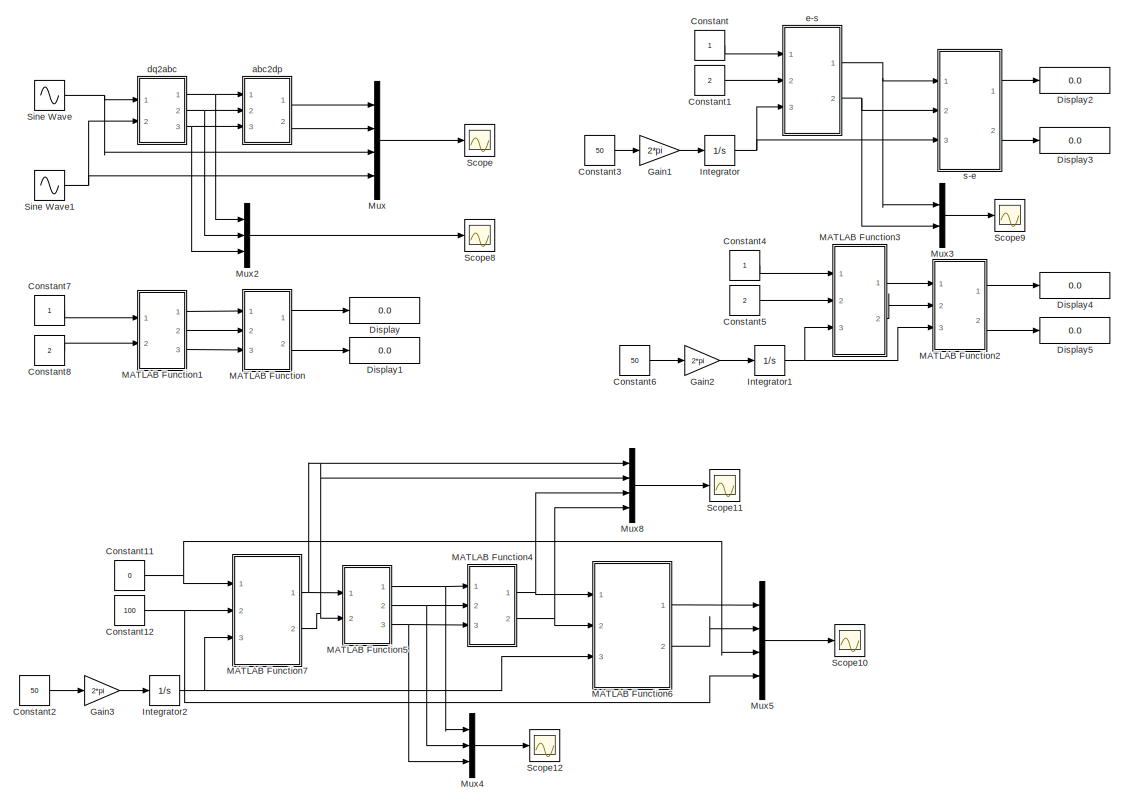
[diagram: root canvas - part 1/3, top left region]
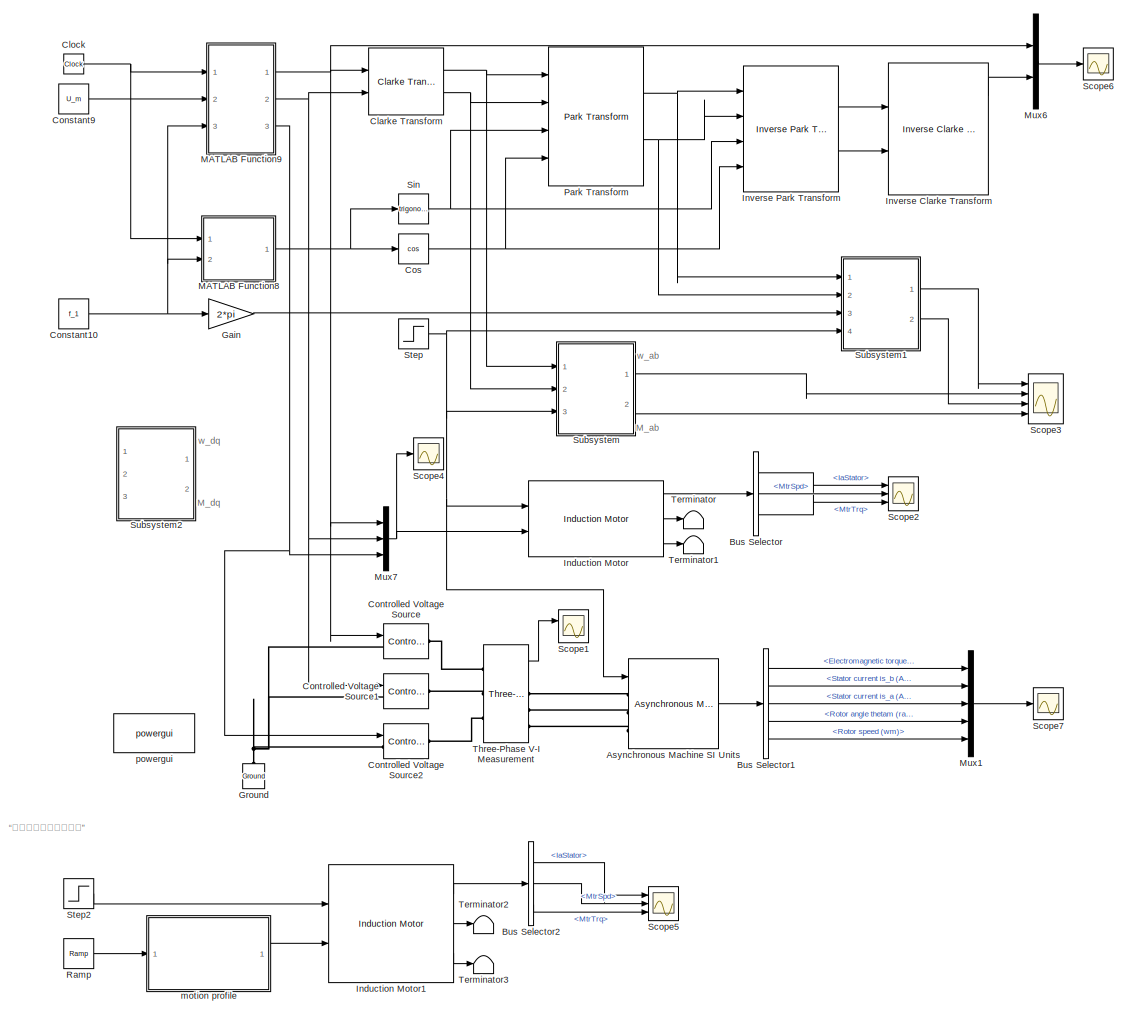
[diagram: root canvas - part 2/3, middle left region]
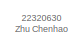
[diagram: root canvas - part 3/3, bottom right region]
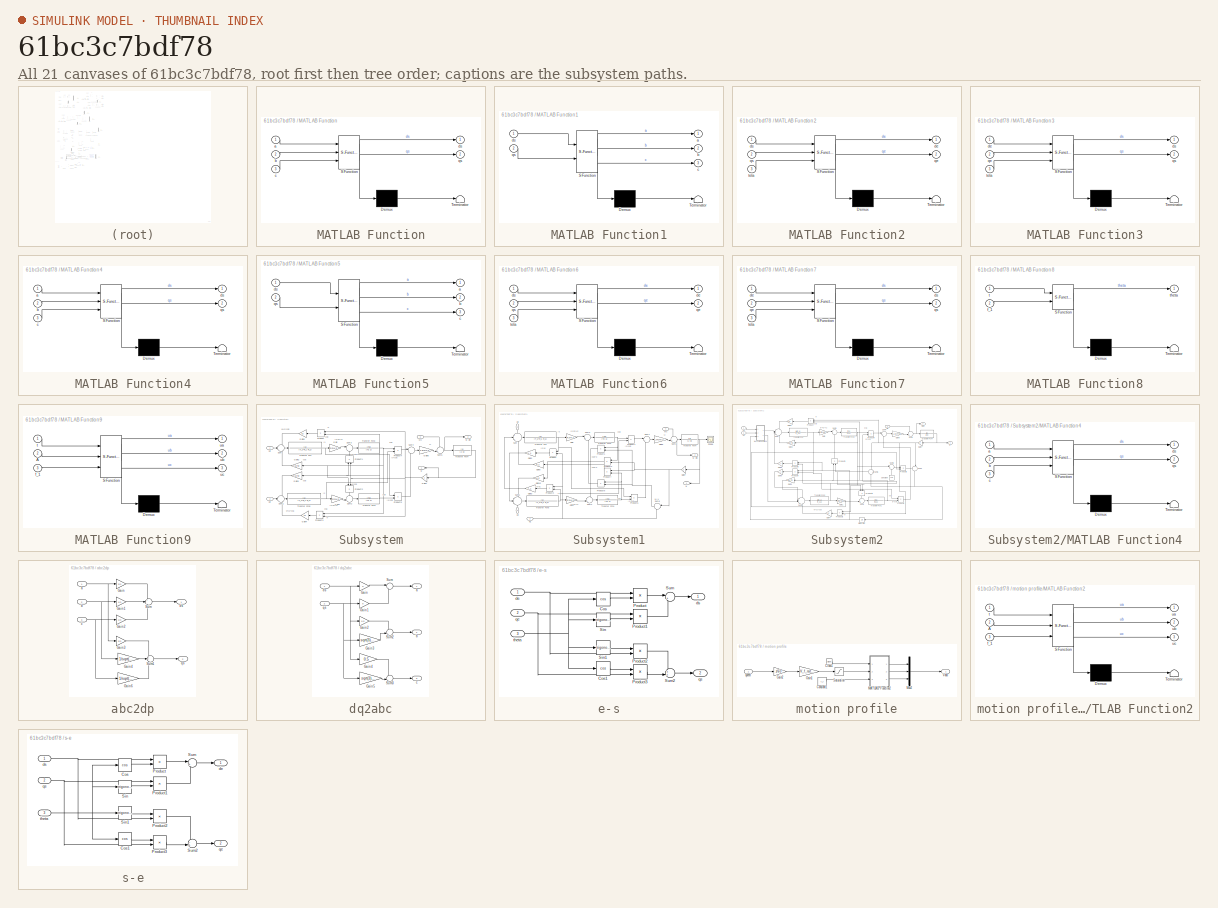
[diagram: thumbnail index - all 21 canvases of the model, root first then tree order]
MODEL slx_61bc3c7bdf78
KIND model
CONFIG AbsTol = auto
CONFIG EnableMultiTasking = off
CONFIG FixedStep = auto
CONFIG MaxStep = 1e-4
CONFIG MinStep = auto
CONFIG RelTol = 1e-3
CONFIG SampleTimeConstraint = Unconstrained
CONFIG SolverName = ode23t
CONFIG StartTime = 0.0
CONFIG StopTime = Tmdl
BLOCK [Reference] Asynchronous Machine SI Units  REF=spsAsynchronousMachineSIUnitsLib/Asynchronous Machine
SI Units
  Ports = [1, 1, 0, 0, 0, 3]
  SourceBlock = spsAsynchronousMachineSIUnitsLib/Asynchronous Machine\nSI Units
  SourceType = Asynchronous Machine
BLOCK [BusSelector] Bus Selector
  OutputSignals = IaStator,MtrSpd,MtrTrq
  Ports = [1, 3]
BLOCK [BusSelector] Bus Selector1
  OutputSignals = Mechanical.Electromagnetic torque Te (N*m),Stator measurements.Stator current is_b (A),Stator measurements.Stator current is_a (A),Mechanical.Rotor angle thetam (rad),Mechanical.Rotor speed (wm)
  Ports = [1, 5]
BLOCK [BusSelector] Bus Selector2
  OutputSignals = IaStator,MtrSpd,MtrTrq
  Ports = [1, 3]
BLOCK [Reference] Clarke Transform  REF=mcbcontrolslib/Clarke Transform
  Ports = [2, 2]
  SourceBlock = mcbcontrolslib/Clarke Transform
  SourceType = Clarke Transform
BLOCK [Clock] Clock
  Decimation = 1
BLOCK [Constant] Constant
BLOCK [Constant] Constant1
  Value = 2
BLOCK [Constant] Constant10
  Value = f_1
BLOCK [Constant] Constant11
  Value = 0
BLOCK [Constant] Constant12
  Value = 100
BLOCK [Constant] Constant2
  Value = 50
BLOCK [Constant] Constant3
  Value = 50
BLOCK [Constant] Constant4
BLOCK [Constant] Constant5
  Value = 2
BLOCK [Constant] Constant6
  Value = 50
BLOCK [Constant] Constant7
BLOCK [Constant] Constant8
  Value = 2
BLOCK [Constant] Constant9
  Value = U_m
BLOCK [Reference] Controlled Voltage Source  REF=spsControlledVoltageSourceLib/Controlled Voltage Source
  NameLocation = left
  Ports = [1, 0, 0, 0, 0, 1, 1]
  SourceBlock = spsControlledVoltageSourceLib/Controlled Voltage Source
  SourceType = Controlled Voltage Source
BLOCK [Reference] Controlled Voltage Source1  REF=spsControlledVoltageSourceLib/Controlled Voltage Source
  NameLocation = left
  Ports = [1, 0, 0, 0, 0, 1, 1]
  SourceBlock = spsControlledVoltageSourceLib/Controlled Voltage Source
  SourceType = Controlled Voltage Source
BLOCK [Reference] Controlled Voltage Source2  REF=spsControlledVoltageSourceLib/Controlled Voltage Source
  NameLocation = left
  Ports = [1, 0, 0, 0, 0, 1, 1]
  SourceBlock = spsControlledVoltageSourceLib/Controlled Voltage Source
  SourceType = Controlled Voltage Source
BLOCK [Trigonometry] Cos
  Operator = cos
  Ports = [1, 1]
BLOCK [Display] Display
  Decimation = 1
  Ports = [1]
BLOCK [Display] Display1
  Decimation = 1
  Ports = [1]
BLOCK [Display] Display2
  Decimation = 1
  Ports = [1]
BLOCK [Display] Display3
  Decimation = 1
  Ports = [1]
BLOCK [Display] Display4
  Decimation = 1
  Ports = [1]
BLOCK [Display] Display5
  Decimation = 1
  Ports = [1]
BLOCK [Gain] Gain
  Gain = 2*pi
BLOCK [Gain] Gain1
  Gain = 2*pi
BLOCK [Gain] Gain2
  Gain = 2*pi
BLOCK [Gain] Gain3
  Gain = 2*pi
BLOCK [Reference] Ground  REF=spsGroundLib/Ground
  NameLocation = right
  Ports = [0, 0, 0, 0, 0, 1]
  SourceBlock = spsGroundLib/Ground
  SourceType = Ground
BLOCK [Reference] Induction Motor  REF=autolibim/Induction Motor
  Ports = [2, 3]
  SourceBlock = autolibim/Induction Motor
  SourceType = Induction Motor
BLOCK [Reference] Induction Motor1  REF=autolibim/Induction Motor
  Ports = [2, 3]
  SourceBlock = autolibim/Induction Motor
  SourceType = Induction Motor
BLOCK [Integrator] Integrator
  Ports = [1, 1]
BLOCK [Integrator] Integrator1
  Ports = [1, 1]
BLOCK [Integrator] Integrator2
  Ports = [1, 1]
BLOCK [Reference] Inverse Clarke Transform  REF=mcbcontrolslib/Inverse Clarke Transform
  Ports = [2, 3]
  SourceBlock = mcbcontrolslib/Inverse Clarke Transform
  SourceType = Inverse Clarke Transform
BLOCK [Reference] Inverse Park Transform  REF=mcbcontrolslib/Inverse Park Transform
  Ports = [4, 2]
  SourceBlock = mcbcontrolslib/Inverse Park Transform
  SourceType = Inverse Park Transform
BLOCK [SubSystem] MATLAB Function
  ErrorFcn = Stateflow.Translate.translate
  PermitHierarchicalResolution = ExplicitOnly
  Ports = [3, 2]
  SFBlockType = MATLAB Function
  TreatAsAtomicUnit = on
BLOCK [Demux] MATLAB Function/ Demux 
  Outputs = 1
  Ports = [1, 1]
BLOCK [S-Function] MATLAB Function/ SFunction 
  EnableBusSupport = on
  FunctionName = sf_sfun
  PortCounts = [3 3]
  Ports = [3, 3]
  SFcnIsStateOwnerBlock = off
  SFunctionDeploymentMode = off
  Tag = Stateflow S-Function 1
BLOCK [Terminator] MATLAB Function/ Terminator 
BLOCK [Inport] MATLAB Function/a
BLOCK [Inport] MATLAB Function/b
  Port = 2
BLOCK [Inport] MATLAB Function/c
  Port = 3
BLOCK [Outport] MATLAB Function/ds
BLOCK [Outport] MATLAB Function/qs
  Port = 2
BLOCK [SubSystem] MATLAB Function1
  ErrorFcn = Stateflow.Translate.translate
  PermitHierarchicalResolution = ExplicitOnly
  Ports = [2, 3]
  SFBlockType = MATLAB Function
  TreatAsAtomicUnit = on
BLOCK [Demux] MATLAB Function1/ Demux 
  Outputs = 1
  Ports = [1, 1]
BLOCK [S-Function] MATLAB Function1/ SFunction 
  EnableBusSupport = on
  FunctionName = sf_sfun
  PortCounts = [2 4]
  Ports = [2, 4]
  SFcnIsStateOwnerBlock = off
  SFunctionDeploymentMode = off
  Tag = Stateflow S-Function 3
BLOCK [Terminator] MATLAB Function1/ Terminator 
BLOCK [Outport] MATLAB Function1/a
BLOCK [Outport] MATLAB Function1/b
  Port = 2
BLOCK [Outport] MATLAB Function1/c
  Port = 3
BLOCK [Inport] MATLAB Function1/ds
BLOCK [Inport] MATLAB Function1/qs
  Port = 2
BLOCK [SubSystem] MATLAB Function2
  ErrorFcn = Stateflow.Translate.translate
  PermitHierarchicalResolution = ExplicitOnly
  Ports = [3, 2]
  SFBlockType = MATLAB Function
  TreatAsAtomicUnit = on
BLOCK [Demux] MATLAB Function2/ Demux 
  Outputs = 1
  Ports = [1, 1]
BLOCK [S-Function] MATLAB Function2/ SFunction 
  EnableBusSupport = on
  FunctionName = sf_sfun
  PortCounts = [3 3]
  Ports = [3, 3]
  SFcnIsStateOwnerBlock = off
  SFunctionDeploymentMode = off
  Tag = Stateflow S-Function 4
BLOCK [Terminator] MATLAB Function2/ Terminator 
BLOCK [Outport] MATLAB Function2/de
BLOCK [Inport] MATLAB Function2/ds
BLOCK [Outport] MATLAB Function2/qe
  Port = 2
BLOCK [Inport] MATLAB Function2/qs
  Port = 2
BLOCK [Inport] MATLAB Function2/teta
  Port = 3
BLOCK [SubSystem] MATLAB Function3
  ErrorFcn = Stateflow.Translate.translate
  PermitHierarchicalResolution = ExplicitOnly
  Ports = [3, 2]
  SFBlockType = MATLAB Function
  TreatAsAtomicUnit = on
BLOCK [Demux] MATLAB Function3/ Demux 
  Outputs = 1
  Ports = [1, 1]
BLOCK [S-Function] MATLAB Function3/ SFunction 
  EnableBusSupport = on
  FunctionName = sf_sfun
  PortCounts = [3 3]
  Ports = [3, 3]
  SFcnIsStateOwnerBlock = off
  SFunctionDeploymentMode = off
  Tag = Stateflow S-Function 6
BLOCK [Terminator] MATLAB Function3/ Terminator 
BLOCK [Inport] MATLAB Function3/de
BLOCK [Outport] MATLAB Function3/ds
BLOCK [Inport] MATLAB Function3/qe
  Port = 2
BLOCK [Outport] MATLAB Function3/qs
  Port = 2
BLOCK [Inport] MATLAB Function3/teta
  Port = 3
BLOCK [SubSystem] MATLAB Function4
  ErrorFcn = Stateflow.Translate.translate
  PermitHierarchicalResolution = ExplicitOnly
  Ports = [3, 2]
  SFBlockType = MATLAB Function
  TreatAsAtomicUnit = on
BLOCK [Demux] MATLAB Function4/ Demux 
  Outputs = 1
  Ports = [1, 1]
BLOCK [S-Function] MATLAB Function4/ SFunction 
  EnableBusSupport = on
  FunctionName = sf_sfun
  PortCounts = [3 3]
  Ports = [3, 3]
  SFcnIsStateOwnerBlock = off
  SFunctionDeploymentMode = off
  Tag = Stateflow S-Function 7
BLOCK [Terminator] MATLAB Function4/ Terminator 
BLOCK [Inport] MATLAB Function4/a
BLOCK [Inport] MATLAB Function4/b
  Port = 2
BLOCK [Inport] MATLAB Function4/c
  Port = 3
BLOCK [Outport] MATLAB Function4/ds
BLOCK [Outport] MATLAB Function4/qs
  Port = 2
BLOCK [SubSystem] MATLAB Function5
  ErrorFcn = Stateflow.Translate.translate
  PermitHierarchicalResolution = ExplicitOnly
  Ports = [2, 3]
  SFBlockType = MATLAB Function
  TreatAsAtomicUnit = on
BLOCK [Demux] MATLAB Function5/ Demux 
  Outputs = 1
  Ports = [1, 1]
BLOCK [S-Function] MATLAB Function5/ SFunction 
  EnableBusSupport = on
  FunctionName = sf_sfun
  PortCounts = [2 4]
  Ports = [2, 4]
  SFcnIsStateOwnerBlock = off
  SFunctionDeploymentMode = off
  Tag = Stateflow S-Function 8
BLOCK [Terminator] MATLAB Function5/ Terminator 
BLOCK [Outport] MATLAB Function5/a
BLOCK [Outport] MATLAB Function5/b
  Port = 2
BLOCK [Outport] MATLAB Function5/c
  Port = 3
BLOCK [Inport] MATLAB Function5/ds
BLOCK [Inport] MATLAB Function5/qs
  Port = 2
BLOCK [SubSystem] MATLAB Function6
  ErrorFcn = Stateflow.Translate.translate
  PermitHierarchicalResolution = ExplicitOnly
  Ports = [3, 2]
  SFBlockType = MATLAB Function
  TreatAsAtomicUnit = on
BLOCK [Demux] MATLAB Function6/ Demux 
  Outputs = 1
  Ports = [1, 1]
BLOCK [S-Function] MATLAB Function6/ SFunction 
  EnableBusSupport = on
  FunctionName = sf_sfun
  PortCounts = [3 3]
  Ports = [3, 3]
  SFcnIsStateOwnerBlock = off
  SFunctionDeploymentMode = off
  Tag = Stateflow S-Function 11
BLOCK [Terminator] MATLAB Function6/ Terminator 
BLOCK [Outport] MATLAB Function6/de
BLOCK [Inport] MATLAB Function6/ds
BLOCK [Outport] MATLAB Function6/qe
  Port = 2
BLOCK [Inport] MATLAB Function6/qs
  Port = 2
BLOCK [Inport] MATLAB Function6/teta
  Port = 3
BLOCK [SubSystem] MATLAB Function7
  ErrorFcn = Stateflow.Translate.translate
  PermitHierarchicalResolution = ExplicitOnly
  Ports = [3, 2]
  SFBlockType = MATLAB Function
  TreatAsAtomicUnit = on
BLOCK [Demux] MATLAB Function7/ Demux 
  Outputs = 1
  Ports = [1, 1]
BLOCK [S-Function] MATLAB Function7/ SFunction 
  EnableBusSupport = on
  FunctionName = sf_sfun
  PortCounts = [3 3]
  Ports = [3, 3]
  SFcnIsStateOwnerBlock = off
  SFunctionDeploymentMode = off
  Tag = Stateflow S-Function 12
BLOCK [Terminator] MATLAB Function7/ Terminator 
BLOCK [Inport] MATLAB Function7/de
BLOCK [Outport] MATLAB Function7/ds
BLOCK [Inport] MATLAB Function7/qe
  Port = 2
BLOCK [Outport] MATLAB Function7/qs
  Port = 2
BLOCK [Inport] MATLAB Function7/teta
  Port = 3
BLOCK [SubSystem] MATLAB Function8
  ErrorFcn = Stateflow.Translate.translate
  PermitHierarchicalResolution = ExplicitOnly
  Ports = [2, 1]
  SFBlockType = MATLAB Function
  TreatAsAtomicUnit = on
BLOCK [Demux] MATLAB Function8/ Demux 
  Outputs = 1
  Ports = [1, 1]
BLOCK [S-Function] MATLAB Function8/ SFunction 
  EnableBusSupport = on
  FunctionName = sf_sfun
  PortCounts = [2 2]
  Ports = [2, 2]
  SFcnIsStateOwnerBlock = off
  SFunctionDeploymentMode = off
  Tag = Stateflow S-Function 9
BLOCK [Terminator] MATLAB Function8/ Terminator 
BLOCK [Inport] MATLAB Function8/f_1
  Port = 2
BLOCK [Inport] MATLAB Function8/t
BLOCK [Outport] MATLAB Function8/theta
BLOCK [SubSystem] MATLAB Function9
  ErrorFcn = Stateflow.Translate.translate
  PermitHierarchicalResolution = ExplicitOnly
  Ports = [3, 3]
  SFBlockType = MATLAB Function
  TreatAsAtomicUnit = on
BLOCK [Demux] MATLAB Function9/ Demux 
  Outputs = 1
  Ports = [1, 1]
BLOCK [S-Function] MATLAB Function9/ SFunction 
  EnableBusSupport = on
  FunctionName = sf_sfun
  PortCounts = [3 4]
  Ports = [3, 4]
  SFcnIsStateOwnerBlock = off
  SFunctionDeploymentMode = off
  Tag = Stateflow S-Function 10
BLOCK [Terminator] MATLAB Function9/ Terminator 
BLOCK [Inport] MATLAB Function9/A
  Port = 2
BLOCK [Inport] MATLAB Function9/f_1
  Port = 3
BLOCK [Inport] MATLAB Function9/t
BLOCK [Outport] MATLAB Function9/ua
BLOCK [Outport] MATLAB Function9/ub
  Port = 2
BLOCK [Outport] MATLAB Function9/uc
  Port = 3
BLOCK [Mux] Mux
  DisplayOption = bar
  Ports = [4, 1]
BLOCK [Mux] Mux1
  DisplayOption = bar
  Inputs = 5
  Ports = [5, 1]
BLOCK [Mux] Mux2
  DisplayOption = bar
  Inputs = 3
  Ports = [3, 1]
BLOCK [Mux] Mux3
  DisplayOption = bar
  Inputs = 2
  Ports = [2, 1]
BLOCK [Mux] Mux4
  DisplayOption = bar
  Inputs = 3
  Ports = [3, 1]
BLOCK [Mux] Mux5
  DisplayOption = bar
  Ports = [4, 1]
BLOCK [Mux] Mux6
  DisplayOption = bar
  Inputs = 2
  Ports = [2, 1]
BLOCK [Mux] Mux7
  DisplayOption = bar
  Inputs = 3
  Ports = [3, 1]
BLOCK [Mux] Mux8
  DisplayOption = bar
  Ports = [4, 1]
BLOCK [Reference] Park Transform  REF=mcbcontrolslib/Park Transform
  Ports = [4, 2]
  SourceBlock = mcbcontrolslib/Park Transform
  SourceType = Park Transform
BLOCK [Reference] Ramp  REF=simulink/Sources/Ramp
  Ports = [0, 1]
  SourceBlock = simulink/Sources/Ramp
  SourceType = Ramp
BLOCK [Scope] Scope
  Floating = off
  NumInputPorts = 1
  Ports = [1]
  ScopeSpecificationString = Simulink.scopes.TimeScopeBlockCfg('CurrentConfiguration', extmgr.ConfigurationSet(extmgr.Configuration('Core','General UI',true,'FigureColor',[1 1 1]),extmgr.Configuration('Core','Source UI',true),extmgr.Configuration('Sources','WiredSimulink',true,'DataLoggingVariableName','ScopeData1'),extmgr.Configuration('Visuals','Time Domain',true,'SerializedDisplays',{struct('MinYLimReal','-465.6986','MaxYL...<+2303ch>
BLOCK [Scope] Scope1
  Floating = off
  NumInputPorts = 2
  Ports = [2]
  ScopeSpecificationString = Simulink.scopes.TimeScopeBlockCfg('CurrentConfiguration', extmgr.ConfigurationSet(extmgr.Configuration('Core','General UI',true,'FigureColor',[1 1 1]),extmgr.Configuration('Core','Source UI',true),extmgr.Configuration('Sources','WiredSimulink',true,'DataLoggingVariableName','ScopeData3'),extmgr.Configuration('Visuals','Time Domain',true,'SerializedDisplays',{struct('MinYLimReal','-673.60967','MaxY...<+2458ch>
BLOCK [Scope] Scope10
  Floating = off
  NumInputPorts = 1
  Ports = [1]
  ScopeSpecificationString = Simulink.scopes.TimeScopeBlockCfg('CurrentConfiguration', extmgr.ConfigurationSet(extmgr.Configuration('Core','General UI',true,'FigureColor',[1 1 1]),extmgr.Configuration('Core','Source UI',true),extmgr.Configuration('Sources','WiredSimulink',true,'DataLoggingVariableName','ScopeData2'),extmgr.Configuration('Visuals','Time Domain',true,'SerializedDisplays',{struct('MinYLimReal','-12.5','MaxYLimRe...<+2328ch>
BLOCK [Scope] Scope11
  Floating = off
  NumInputPorts = 1
  Ports = [1]
  ScopeSpecificationString = Simulink.scopes.TimeScopeBlockCfg('CurrentConfiguration', extmgr.ConfigurationSet(extmgr.Configuration('Core','General UI',true,'FigureColor',[1 1 1]),extmgr.Configuration('Core','Source UI',true),extmgr.Configuration('Sources','WiredSimulink',true,'DataLoggingVariableName','ScopeData3'),extmgr.Configuration('Visuals','Time Domain',true,'SerializedDisplays',{struct('MinYLimReal','-125.00000','MaxY...<+2350ch>
BLOCK [Scope] Scope12
  Floating = off
  NumInputPorts = 1
  Ports = [1]
  ScopeSpecificationString = Simulink.scopes.TimeScopeBlockCfg('CurrentConfiguration', extmgr.ConfigurationSet(extmgr.Configuration('Core','General UI',true,'FigureColor',[1 1 1]),extmgr.Configuration('Core','Source UI',true),extmgr.Configuration('Sources','WiredSimulink',true,'DataLoggingVariableName','ScopeData6'),extmgr.Configuration('Visuals','Time Domain',true,'SerializedDisplays',{struct('MinYLimReal','-125.00000','MaxY...<+2353ch>
BLOCK [Scope] Scope2
  Floating = off
  NumInputPorts = 3
  Ports = [3]
  ScopeSpecificationString = Simulink.scopes.TimeScopeBlockCfg('CurrentConfiguration', extmgr.ConfigurationSet(extmgr.Configuration('Core','General UI',true,'FigureColor',[1 1 1]),extmgr.Configuration('Core','Source UI',true),extmgr.Configuration('Sources','WiredSimulink',true,'DataLoggingVariableName','ScopeData4'),extmgr.Configuration('Visuals','Time Domain',true,'SerializedDisplays',{struct('MinYLimReal','-187.27175','MaxY...<+2382ch>
BLOCK [Scope] Scope3
  Floating = off
  NumInputPorts = 4
  Ports = [4]
  ScopeSpecificationString = Simulink.scopes.TimeScopeBlockCfg('CurrentConfiguration', extmgr.ConfigurationSet(extmgr.Configuration('Core','General UI',true,'FigureColor',[1 1 1]),extmgr.Configuration('Core','Source UI',true),extmgr.Configuration('Sources','WiredSimulink',true,'DataLoggingVariableName','ScopeData5'),extmgr.Configuration('Visuals','Time Domain',true,'SerializedDisplays',{struct('MinYLimReal','-181.02318','MaxY...<+2324ch>
BLOCK [Scope] Scope4
  Floating = off
  NumInputPorts = 1
  Ports = [1]
  ScopeSpecificationString = Simulink.scopes.TimeScopeBlockCfg('CurrentConfiguration', extmgr.ConfigurationSet(extmgr.Configuration('Core','General UI',true,'FigureColor',[1 1 1]),extmgr.Configuration('Core','Source UI',true),extmgr.Configuration('Sources','WiredSimulink',true,'DataLoggingVariableName','ScopeData6'),extmgr.Configuration('Visuals','Time Domain',true,'SerializedDisplays',{struct('MinYLimReal','-388.90873','MaxY...<+2401ch>
BLOCK [Scope] Scope5
  Floating = off
  NumInputPorts = 3
  Ports = [3]
  ScopeSpecificationString = Simulink.scopes.TimeScopeBlockCfg('CurrentConfiguration', extmgr.ConfigurationSet(extmgr.Configuration('Core','General UI',true,'FigureColor',[1 1 1]),extmgr.Configuration('Core','Source UI',true),extmgr.Configuration('Sources','WiredSimulink',true,'DataLoggingVariableName','ScopeData1'),extmgr.Configuration('Visuals','Time Domain',true,'SerializedDisplays',{struct('MinYLimReal','-175.18179','MaxY...<+2389ch>
BLOCK [Scope] Scope6
  Floating = off
  NumInputPorts = 1
  Ports = [1]
  ScopeSpecificationString = Simulink.scopes.TimeScopeBlockCfg('CurrentConfiguration', extmgr.ConfigurationSet(extmgr.Configuration('Core','General UI',true,'FigureColor',[1 1 1]),extmgr.Configuration('Core','Source UI',true),extmgr.Configuration('Sources','WiredSimulink',true,'DataLoggingVariableName','ScopeData1'),extmgr.Configuration('Visuals','Time Domain',true,'SerializedDisplays',{struct('MinYLimReal','-388.90873','MaxY...<+2313ch>
BLOCK [Scope] Scope7
  Floating = off
  NumInputPorts = 1
  Ports = [1]
  ScopeSpecificationString = Simulink.scopes.TimeScopeBlockCfg('CurrentConfiguration', extmgr.ConfigurationSet(extmgr.Configuration('Core','General UI',true,'FigureColor',[1 1 1]),extmgr.Configuration('Core','Source UI',true),extmgr.Configuration('Sources','WiredSimulink',true,'DataLoggingVariableName','ScopeData2'),extmgr.Configuration('Visuals','Time Domain',true,'SerializedDisplays',{struct('MinYLimReal','-187.10789','MaxY...<+2446ch>
BLOCK [Scope] Scope8
  Floating = off
  NumInputPorts = 1
  Ports = [1]
  ScopeSpecificationString = Simulink.scopes.TimeScopeBlockCfg('CurrentConfiguration', extmgr.ConfigurationSet(extmgr.Configuration('Core','General UI',true,'FigureColor',[1 1 1]),extmgr.Configuration('Core','Source UI',true),extmgr.Configuration('Sources','WiredSimulink',true,'DataLoggingVariableName','ScopeData4'),extmgr.Configuration('Visuals','Time Domain',true,'SerializedDisplays',{struct('MinYLimReal','-387.5','MaxYLimR...<+2273ch>
BLOCK [Scope] Scope9
  Floating = off
  NumInputPorts = 1
  Ports = [1]
  ScopeSpecificationString = Simulink.scopes.TimeScopeBlockCfg('CurrentConfiguration', extmgr.ConfigurationSet(extmgr.Configuration('Core','General UI',true,'FigureColor',[1 1 1]),extmgr.Configuration('Core','Source UI',true),extmgr.Configuration('Sources','WiredSimulink',true,'DataLoggingVariableName','ScopeData5'),extmgr.Configuration('Visuals','Time Domain',true,'SerializedDisplays',{struct('MinYLimReal','-2.795','MaxYLimR...<+2251ch>
BLOCK [Trigonometry] Sin
  Ports = [1, 1]
BLOCK [Sin] Sine Wave
  Amplitude = 310
  Frequency = 2*pi*50
  Ports = [0, 1]
  SampleTime = 0
BLOCK [Sin] Sine Wave1
  Amplitude = 310
  Frequency = 2*pi*50
  Phase = pi/2
  Ports = [0, 1]
  SampleTime = 0
BLOCK [Step] Step
  After = Tn
  SampleTime = 0
BLOCK [Step] Step2
  After = Tn
  SampleTime = 0
  Time = 3
BLOCK [SubSystem] Subsystem
  Ports = [3, 2]
BLOCK [Gain] Subsystem/Gain
  Gain = R2*K2
BLOCK [Gain] Subsystem/Gain1
  Gain = R2*K2
BLOCK [Gain] Subsystem/Gain2
  Gain = K2/T2
  NameLocation = top
BLOCK [Gain] Subsystem/Gain3
  Gain = K2/T2
  NameLocation = top
BLOCK [Gain] Subsystem/Gain4
  Gain = K2
  NameLocation = top
BLOCK [Gain] Subsystem/Gain5
  Gain = K2
  NameLocation = top
BLOCK [Gain] Subsystem/Gain6
  Gain = 1.5*z*K2
BLOCK [Gain] Subsystem/Gain7
  Gain = z
  NameLocation = top
BLOCK [Outport] Subsystem/M din
  Port = 2
  VectorParamsAs1DForOutWhenUnconnected = off
BLOCK [Inport] Subsystem/Mc
  Port = 3
BLOCK [Product] Subsystem/Product
  NameLocation = top
  Ports = [2, 1]
BLOCK [Product] Subsystem/Product1
  NameLocation = right
  Ports = [2, 1]
BLOCK [Product] Subsystem/Product2
  NameLocation = left
  Ports = [2, 1]
BLOCK [Product] Subsystem/Product3
  NameLocation = top
  Ports = [2, 1]
BLOCK [Product] Subsystem/Product4
  Ports = [2, 1]
BLOCK [Product] Subsystem/Product5
  Ports = [2, 1]
BLOCK [Sum] Subsystem/Sum
  Inputs = +|+|+
  Ports = [3, 1]
BLOCK [Sum] Subsystem/Sum1
  Inputs = +|+|-
  Ports = [3, 1]
BLOCK [Sum] Subsystem/Sum2
  Inputs = ++|
  Ports = [2, 1]
BLOCK [Sum] Subsystem/Sum3
  Inputs = |+-
  Ports = [2, 1]
BLOCK [Sum] Subsystem/Sum4
  Inputs = |+-
  Ports = [2, 1]
BLOCK [Sum] Subsystem/Sum5
  Inputs = -+|
  Ports = [2, 1]
BLOCK [TransferFcn] Subsystem/Transfer Fcn
  Denominator = [T_1*R_1 R_1]
BLOCK [TransferFcn] Subsystem/Transfer Fcn1
  Denominator = [T2 1]
  Numerator = [T2]
BLOCK [TransferFcn] Subsystem/Transfer Fcn3
  Denominator = [T2 1]
  Numerator = [T2]
BLOCK [TransferFcn] Subsystem/Transfer Fcn4
  Denominator = [J 0]
BLOCK [TransferFcn] Subsystem/Transfer Fcn5
  Denominator = [T_1*R_1 R_1]
BLOCK [Inport] Subsystem/Ua
BLOCK [Inport] Subsystem/Ub
  Port = 2
BLOCK [Outport] Subsystem/w
  NameLocation = top
  VectorParamsAs1DForOutWhenUnconnected = off
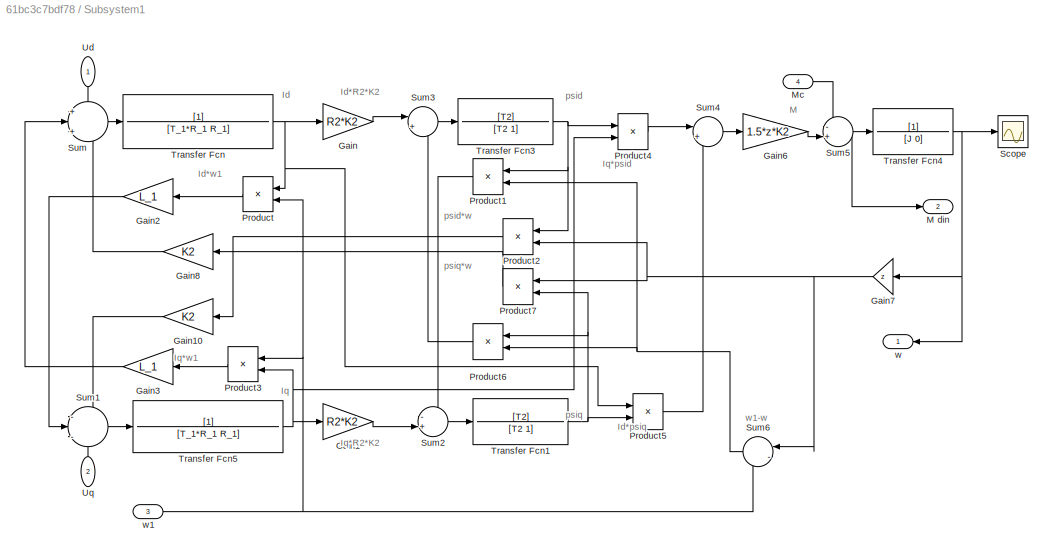
BLOCK [SubSystem] Subsystem1
  Ports = [4, 2]
BLOCK [Gain] Subsystem1/Gain
  Gain = R2*K2
BLOCK [Gain] Subsystem1/Gain1
  Gain = R2*K2
BLOCK [Gain] Subsystem1/Gain10
  Gain = K2
  NameLocation = top
BLOCK [Gain] Subsystem1/Gain2
  Gain = L_1
  NameLocation = top
BLOCK [Gain] Subsystem1/Gain3
  Gain = L_1
  NameLocation = top
BLOCK [Gain] Subsystem1/Gain6
  Gain = 1.5*z*K2
BLOCK [Gain] Subsystem1/Gain7
  Gain = z
  NameLocation = top
BLOCK [Gain] Subsystem1/Gain8
  Gain = K2
  NameLocation = top
BLOCK [Outport] Subsystem1/M din
  Port = 2
  VectorParamsAs1DForOutWhenUnconnected = off
BLOCK [Inport] Subsystem1/Mc
  Port = 4
BLOCK [Product] Subsystem1/Product
  NameLocation = top
  Ports = [2, 1]
BLOCK [Product] Subsystem1/Product1
  NameLocation = top
  Ports = [2, 1]
BLOCK [Product] Subsystem1/Product2
  NameLocation = top
  Ports = [2, 1]
BLOCK [Product] Subsystem1/Product3
  NameLocation = top
  Ports = [2, 1]
BLOCK [Product] Subsystem1/Product4
  Ports = [2, 1]
BLOCK [Product] Subsystem1/Product5
  Ports = [2, 1]
BLOCK [Product] Subsystem1/Product6
  NameLocation = top
  Ports = [2, 1]
BLOCK [Product] Subsystem1/Product7
  NameLocation = top
  Ports = [2, 1]
BLOCK [Scope] Subsystem1/Scope
  Floating = off
  NumInputPorts = 1
  Ports = [1]
  ScopeSpecificationString = Simulink.scopes.TimeScopeBlockCfg('CurrentConfiguration', extmgr.ConfigurationSet(extmgr.Configuration('Core','General UI',true),extmgr.Configuration('Core','Source UI',true),extmgr.Configuration('Sources','WiredSimulink',true,'DataLoggingVariableName','ScopeData1'),extmgr.Configuration('Visuals','Time Domain',true,'SerializedDisplays',{struct('MinYLimReal','-19.625','MaxYLimReal','176.625','YLabe...<+1370ch>
BLOCK [Sum] Subsystem1/Sum
  Inputs = +|+|+
  Ports = [3, 1]
BLOCK [Sum] Subsystem1/Sum1
  Inputs = -|-|+
  Ports = [3, 1]
BLOCK [Sum] Subsystem1/Sum2
  Inputs = -+|
  Ports = [2, 1]
BLOCK [Sum] Subsystem1/Sum3
  Inputs = |++
  Ports = [2, 1]
BLOCK [Sum] Subsystem1/Sum4
  Inputs = |+-
  Ports = [2, 1]
BLOCK [Sum] Subsystem1/Sum5
  Inputs = -+|
  Ports = [2, 1]
BLOCK [Sum] Subsystem1/Sum6
  Inputs = |-+
  NameLocation = top
  Ports = [2, 1]
BLOCK [TransferFcn] Subsystem1/Transfer Fcn
  Denominator = [T_1*R_1 R_1]
BLOCK [TransferFcn] Subsystem1/Transfer Fcn1
  Denominator = [T2 1]
  Numerator = [T2]
BLOCK [TransferFcn] Subsystem1/Transfer Fcn3
  Denominator = [T2 1]
  Numerator = [T2]
BLOCK [TransferFcn] Subsystem1/Transfer Fcn4
  Denominator = [J 0]
BLOCK [TransferFcn] Subsystem1/Transfer Fcn5
  Denominator = [T_1*R_1 R_1]
BLOCK [Inport] Subsystem1/Ud
  NameLocation = left
BLOCK [Inport] Subsystem1/Uq
  NameLocation = right
  Port = 2
BLOCK [Outport] Subsystem1/w
  NameLocation = top
  VectorParamsAs1DForOutWhenUnconnected = off
BLOCK [Inport] Subsystem1/w1
  Port = 3
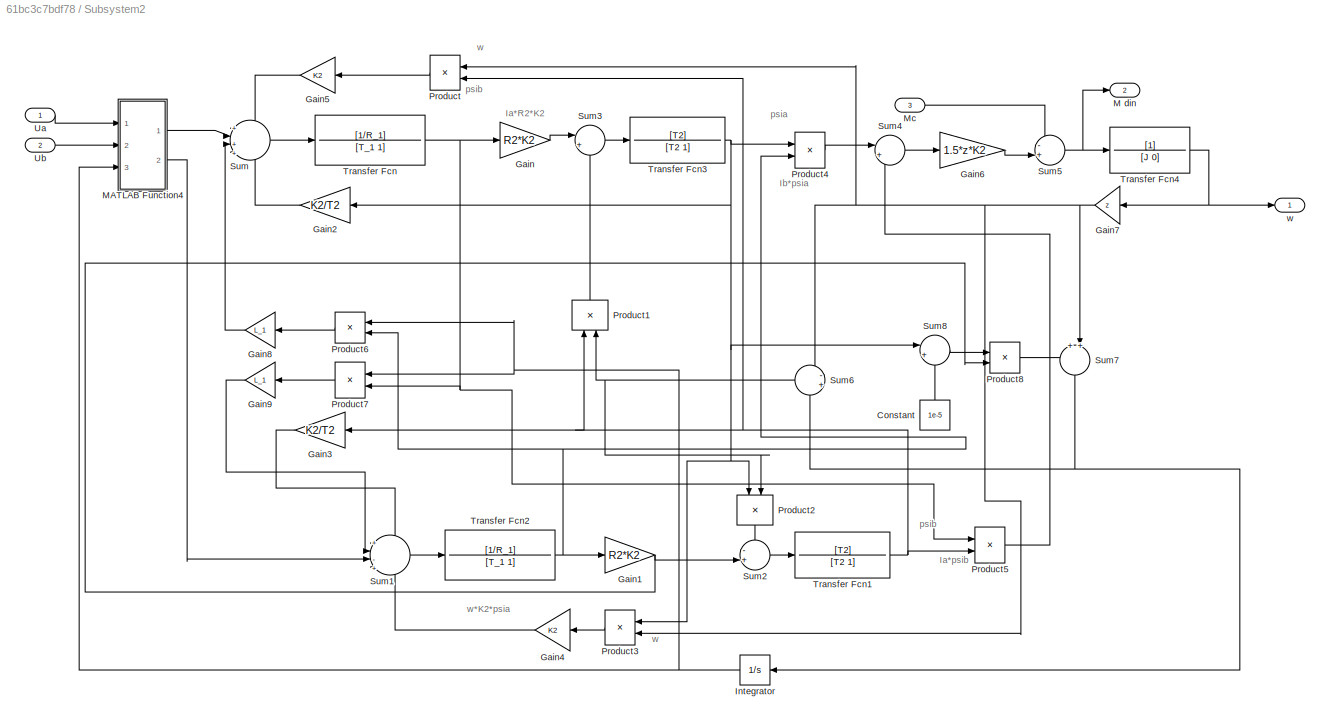
BLOCK [SubSystem] Subsystem2
  Commented = on
  Ports = [3, 2]
BLOCK [Constant] Subsystem2/Constant
  NameLocation = right
  Value = 1e-5
BLOCK [Gain] Subsystem2/Gain
  Gain = R2*K2
BLOCK [Gain] Subsystem2/Gain1
  Gain = R2*K2
BLOCK [Gain] Subsystem2/Gain2
  Gain = K2/T2
  NameLocation = top
BLOCK [Gain] Subsystem2/Gain3
  Gain = K2/T2
  NameLocation = top
BLOCK [Gain] Subsystem2/Gain4
  Gain = K2
  NameLocation = top
BLOCK [Gain] Subsystem2/Gain5
  Gain = K2
  NameLocation = top
BLOCK [Gain] Subsystem2/Gain6
  Gain = 1.5*z*K2
BLOCK [Gain] Subsystem2/Gain7
  Gain = z
  NameLocation = top
BLOCK [Gain] Subsystem2/Gain8
  Gain = L_1
  NameLocation = top
BLOCK [Gain] Subsystem2/Gain9
  Gain = L_1
  NameLocation = top
BLOCK [Integrator] Subsystem2/Integrator
  NameLocation = top
  Ports = [1, 1]
BLOCK [Outport] Subsystem2/M din
  Port = 2
  VectorParamsAs1DForOutWhenUnconnected = off
BLOCK [SubSystem] Subsystem2/MATLAB Function4
  ErrorFcn = Stateflow.Translate.translate
  PermitHierarchicalResolution = ExplicitOnly
  Ports = [3, 2]
  SFBlockType = MATLAB Function
  TreatAsAtomicUnit = on
BLOCK [Demux] Subsystem2/MATLAB Function4/ Demux 
  Outputs = 1
  Ports = [1, 1]
BLOCK [S-Function] Subsystem2/MATLAB Function4/ SFunction 
  EnableBusSupport = on
  FunctionName = sf_sfun
  PortCounts = [3 3]
  Ports = [3, 3]
  SFcnIsStateOwnerBlock = off
  SFunctionDeploymentMode = off
  Tag = Stateflow S-Function 5
BLOCK [Terminator] Subsystem2/MATLAB Function4/ Terminator 
BLOCK [Inport] Subsystem2/MATLAB Function4/a
BLOCK [Inport] Subsystem2/MATLAB Function4/b
  Port = 2
BLOCK [Inport] Subsystem2/MATLAB Function4/c
  Port = 3
BLOCK [Outport] Subsystem2/MATLAB Function4/ds
BLOCK [Outport] Subsystem2/MATLAB Function4/qs
  Port = 2
BLOCK [Inport] Subsystem2/Mc
  Port = 3
BLOCK [Product] Subsystem2/Product
  NameLocation = top
  Ports = [2, 1]
BLOCK [Product] Subsystem2/Product1
  NameLocation = right
  Ports = [2, 1]
BLOCK [Product] Subsystem2/Product2
  NameLocation = left
  Ports = [2, 1]
BLOCK [Product] Subsystem2/Product3
  NameLocation = top
  Ports = [2, 1]
BLOCK [Product] Subsystem2/Product4
  Ports = [2, 1]
BLOCK [Product] Subsystem2/Product5
  Ports = [2, 1]
BLOCK [Product] Subsystem2/Product6
  NameLocation = top
  Ports = [2, 1]
BLOCK [Product] Subsystem2/Product7
  NameLocation = top
  Ports = [2, 1]
BLOCK [Product] Subsystem2/Product8
  Inputs = /*
  Ports = [2, 1]
BLOCK [Sum] Subsystem2/Sum
  Inputs = +|+|+|+
  Ports = [4, 1]
BLOCK [Sum] Subsystem2/Sum1
  Inputs = +|-|+|-
  Ports = [4, 1]
BLOCK [Sum] Subsystem2/Sum2
  Inputs = -+|
  Ports = [2, 1]
BLOCK [Sum] Subsystem2/Sum3
  Inputs = |++
  Ports = [2, 1]
BLOCK [Sum] Subsystem2/Sum4
  Inputs = |+-
  Ports = [2, 1]
BLOCK [Sum] Subsystem2/Sum5
  Inputs = -+|
  Ports = [2, 1]
BLOCK [Sum] Subsystem2/Sum6
  Inputs = -+
  NameLocation = top
  Ports = [2, 1]
BLOCK [Sum] Subsystem2/Sum7
  Inputs = ++|
  NameLocation = left
  Ports = [2, 1]
BLOCK [Sum] Subsystem2/Sum8
  Inputs = |++
  Ports = [2, 1]
BLOCK [TransferFcn] Subsystem2/Transfer Fcn
  Denominator = [T_1 1]
  Numerator = [1/R_1]
BLOCK [TransferFcn] Subsystem2/Transfer Fcn1
  Denominator = [T2 1]
  Numerator = [T2]
BLOCK [TransferFcn] Subsystem2/Transfer Fcn2
  Denominator = [T_1 1]
  Numerator = [1/R_1]
BLOCK [TransferFcn] Subsystem2/Transfer Fcn3
  Denominator = [T2 1]
  Numerator = [T2]
BLOCK [TransferFcn] Subsystem2/Transfer Fcn4
  Denominator = [J 0]
BLOCK [Inport] Subsystem2/Ua
BLOCK [Inport] Subsystem2/Ub
  Port = 2
BLOCK [Outport] Subsystem2/w
  VectorParamsAs1DForOutWhenUnconnected = off
BLOCK [Terminator] Terminator
BLOCK [Terminator] Terminator1
BLOCK [Terminator] Terminator2
BLOCK [Terminator] Terminator3
BLOCK [Reference] Three-Phase V-I Measurement  REF=spsThreePhaseVIMeasurementLib/Three-Phase
V-I Measurement
  Ports = [0, 2, 0, 0, 0, 3, 3]
  SourceBlock = spsThreePhaseVIMeasurementLib/Three-Phase\nV-I Measurement
  SourceType = Three-Phase VI Measurement
BLOCK [SubSystem] abc2dp
  Ports = [3, 2]
BLOCK [Gain] abc2dp/Gain
  Gain = 2/3
BLOCK [Gain] abc2dp/Gain1
  Gain = 1/3
BLOCK [Gain] abc2dp/Gain2
  Gain = 1/3
BLOCK [Gain] abc2dp/Gain3
  Gain = 2/3
BLOCK [Gain] abc2dp/Gain4
  Gain = 1/sqrt(3)
BLOCK [Gain] abc2dp/Gain6
  Gain = 1/sqrt(3)
BLOCK [Sum] abc2dp/Sum
  Inputs = +--
  Ports = [3, 1]
BLOCK [Sum] abc2dp/Sum1
  Inputs = ++-
  Ports = [3, 1]
BLOCK [Inport] abc2dp/a
BLOCK [Inport] abc2dp/b
  Port = 2
BLOCK [Inport] abc2dp/c
  Port = 3
BLOCK [Outport] abc2dp/ds
BLOCK [Outport] abc2dp/qs
  Port = 2
BLOCK [SubSystem] dq2abc
  Ports = [2, 3]
BLOCK [Gain] dq2abc/Gain
BLOCK [Gain] dq2abc/Gain1
  Gain = 0
BLOCK [Gain] dq2abc/Gain2
  Gain = 0.5
BLOCK [Gain] dq2abc/Gain3
  Gain = sqrt(3)/2
BLOCK [Gain] dq2abc/Gain4
  Gain = 0.5
BLOCK [Gain] dq2abc/Gain5
  Gain = sqrt(3)/2
BLOCK [Sum] dq2abc/Sum
  Inputs = |++
  Ports = [2, 1]
BLOCK [Sum] dq2abc/Sum2
  Inputs = -+
  Ports = [2, 1]
BLOCK [Sum] dq2abc/Sum3
  Inputs = --|
  Ports = [2, 1]
BLOCK [Outport] dq2abc/a
BLOCK [Outport] dq2abc/b
  Port = 2
BLOCK [Outport] dq2abc/c
  Port = 3
BLOCK [Inport] dq2abc/ds
BLOCK [Inport] dq2abc/qs
  Port = 2
BLOCK [SubSystem] e-s
  Ports = [3, 2]
BLOCK [Trigonometry] e-s/Cos
  Operator = cos
  Ports = [1, 1]
BLOCK [Trigonometry] e-s/Cos1
  Operator = cos
  Ports = [1, 1]
BLOCK [Product] e-s/Product
  Ports = [2, 1]
BLOCK [Product] e-s/Product1
  Ports = [2, 1]
BLOCK [Product] e-s/Product2
  Ports = [2, 1]
BLOCK [Product] e-s/Product3
  Ports = [2, 1]
BLOCK [Trigonometry] e-s/Sin
  Ports = [1, 1]
BLOCK [Trigonometry] e-s/Sin1
  Ports = [1, 1]
BLOCK [Sum] e-s/Sum
  Inputs = |+-
  Ports = [2, 1]
BLOCK [Sum] e-s/Sum2
  Inputs = ++|
  Ports = [2, 1]
BLOCK [Inport] e-s/de
BLOCK [Outport] e-s/ds
BLOCK [Inport] e-s/qe
  Port = 2
BLOCK [Outport] e-s/qs
  Port = 2
BLOCK [Inport] e-s/theta
  Port = 3
BLOCK [SubSystem] motion profile
  Ports = [1, 1]
BLOCK [Clock] motion profile/Clock1
  Decimation = 1
BLOCK [Constant] motion profile/Constant1
  Value = f_r
BLOCK [Gain] motion profile/Gain1
  Gain = V_f_ratio
BLOCK [Gain] motion profile/Gain2
  Gain = z/60
BLOCK [SubSystem] motion profile/MATLAB Function2
  ErrorFcn = Stateflow.Translate.translate
  PermitHierarchicalResolution = ExplicitOnly
  Ports = [3, 3]
  SFBlockType = MATLAB Function
  TreatAsAtomicUnit = on
BLOCK [Demux] motion profile/MATLAB Function2/ Demux 
  Outputs = 1
  Ports = [1, 1]
BLOCK [S-Function] motion profile/MATLAB Function2/ SFunction 
  EnableBusSupport = on
  FunctionName = sf_sfun
  PortCounts = [3 4]
  Ports = [3, 4]
  SFcnIsStateOwnerBlock = off
  SFunctionDeploymentMode = off
  Tag = Stateflow S-Function 2
BLOCK [Terminator] motion profile/MATLAB Function2/ Terminator 
BLOCK [Inport] motion profile/MATLAB Function2/A
  Port = 2
BLOCK [Inport] motion profile/MATLAB Function2/f_1
  Port = 3
BLOCK [Inport] motion profile/MATLAB Function2/t
BLOCK [Outport] motion profile/MATLAB Function2/ua
BLOCK [Outport] motion profile/MATLAB Function2/ub
  Port = 2
BLOCK [Outport] motion profile/MATLAB Function2/uc
  Port = 3
BLOCK [Mux] motion profile/Mux2
  DisplayOption = bar
  Inputs = 3
  Ports = [3, 1]
BLOCK [Saturate] motion profile/Saturation
  UpperLimit = U_m
BLOCK [Outport] motion profile/Vabc
BLOCK [Inport] motion profile/speed
BLOCK [Reference] powergui  REF=spspowerguiLib/powergui
  Ports = []
  Priority = 1
  SourceBlock = spspowerguiLib/powergui
  SourceType = PSB option menu block
BLOCK [SubSystem] s-e
  Ports = [3, 2]
BLOCK [Trigonometry] s-e/Cos
  Operator = cos
  Ports = [1, 1]
BLOCK [Trigonometry] s-e/Cos1
  Operator = cos
  Ports = [1, 1]
BLOCK [Product] s-e/Product
  Ports = [2, 1]
BLOCK [Product] s-e/Product1
  Ports = [2, 1]
BLOCK [Product] s-e/Product2
  Ports = [2, 1]
BLOCK [Product] s-e/Product3
  Ports = [2, 1]
BLOCK [Trigonometry] s-e/Sin
  Ports = [1, 1]
BLOCK [Trigonometry] s-e/Sin1
  Ports = [1, 1]
BLOCK [Sum] s-e/Sum
  Inputs = |++
  Ports = [2, 1]
BLOCK [Sum] s-e/Sum2
  Inputs = -+|
  Ports = [2, 1]
BLOCK [Outport] s-e/de
BLOCK [Inport] s-e/ds
BLOCK [Outport] s-e/qe
  Port = 2
BLOCK [Inport] s-e/qs
  Port = 2
BLOCK [Inport] s-e/theta
  Port = 3
ANNOTATION (root): 22320630 Zhu Chenhao
ANNOTATION (root): M_ab
ANNOTATION (root): M_dq
ANNOTATION (root): w_ab
ANNOTATION (root): w_dq
ANNOTATION (root): “科研产物，不保证正确”
ANNOTATION Subsystem: Ia
ANNOTATION Subsystem: Ia*R2*K2
ANNOTATION Subsystem: Ia*psib
ANNOTATION Subsystem: Ib
ANNOTATION Subsystem: Ib*R2*K2
ANNOTATION Subsystem: Ib*psia
ANNOTATION Subsystem: M
ANNOTATION Subsystem: psia
ANNOTATION Subsystem: psib
ANNOTATION Subsystem: w
ANNOTATION Subsystem: w*K2*psia
ANNOTATION Subsystem: w*K2*psib
ANNOTATION Subsystem: w*psia
ANNOTATION Subsystem: w*psib
ANNOTATION Subsystem1: Id
ANNOTATION Subsystem1: Id*R2*K2
ANNOTATION Subsystem1: Id*psiq
ANNOTATION Subsystem1: Id*w1
ANNOTATION Subsystem1: Iq
ANNOTATION Subsystem1: Iq*R2*K2
ANNOTATION Subsystem1: Iq*psid
ANNOTATION Subsystem1: Iq*w1
ANNOTATION Subsystem1: M
ANNOTATION Subsystem1: psid
ANNOTATION Subsystem1: psid*w
ANNOTATION Subsystem1: psiq
ANNOTATION Subsystem1: psiq*w
ANNOTATION Subsystem1: w1-w
ANNOTATION Subsystem2: Ia*R2*K2
ANNOTATION Subsystem2: Ia*psib
ANNOTATION Subsystem2: Ib*psia
ANNOTATION Subsystem2: psia
ANNOTATION Subsystem2: psib
ANNOTATION Subsystem2: w
ANNOTATION Subsystem2: w*K2*psia
LINE Asynchronous Machine SI Units:1 -> Bus Selector1:1
LINE Bus Selector1:1 -> Mux1:1
LINE Bus Selector1:2 -> Mux1:2
LINE Bus Selector1:3 -> Mux1:3
LINE Bus Selector1:4 -> Mux1:4
LINE Bus Selector1:5 -> Mux1:5
LINE Bus Selector2:1 -> Scope5:1
LINE Bus Selector2:2 -> Scope5:2
LINE Bus Selector2:3 -> Scope5:3
LINE Bus Selector:1 -> Scope2:1
LINE Bus Selector:2 -> Scope2:2
LINE Bus Selector:3 -> Scope2:3
NET Clarke Transform:1 -> Park Transform:1, Subsystem:1
NET Clarke Transform:2 -> Park Transform:2, Subsystem:2
NET Clock:1 -> MATLAB Function8:1, MATLAB Function9:1
NET Constant10:1 -> Gain:1, MATLAB Function8:2, MATLAB Function9:3
NET Constant11:1 -> MATLAB Function7:1, Mux5:3
NET Constant12:1 -> MATLAB Function7:2, Mux5:4
LINE Constant1:1 -> e-s:2
LINE Constant2:1 -> Gain3:1
LINE Constant3:1 -> Gain1:1
LINE Constant4:1 -> MATLAB Function3:1
LINE Constant5:1 -> MATLAB Function3:2
LINE Constant6:1 -> Gain2:1
LINE Constant7:1 -> MATLAB Function1:1
LINE Constant8:1 -> MATLAB Function1:2
LINE Constant9:1 -> MATLAB Function9:2
LINE Constant:1 -> e-s:1
NET Cos:1 -> Inverse Park Transform:4, Park Transform:4
LINE Gain1:1 -> Integrator:1
LINE Gain2:1 -> Integrator1:1
LINE Gain3:1 -> Integrator2:1
LINE Gain:1 -> Subsystem1:3
LINE Induction Motor1:1 -> Bus Selector2:1
LINE Induction Motor1:2 -> Terminator2:1
LINE Induction Motor1:3 -> Terminator3:1
LINE Induction Motor:1 -> Bus Selector:1
LINE Induction Motor:2 -> Terminator:1
LINE Induction Motor:3 -> Terminator1:1
NET Integrator1:1 -> MATLAB Function2:3, MATLAB Function3:3
NET Integrator2:1 -> MATLAB Function6:3, MATLAB Function7:3
NET Integrator:1 -> e-s:3, s-e:3
LINE Inverse Clarke Transform:1 -> Mux6:2
LINE Inverse Park Transform:1 -> Inverse Clarke Transform:1
LINE Inverse Park Transform:2 -> Inverse Clarke Transform:2
LINE MATLAB Function1:1 -> MATLAB Function:1
LINE MATLAB Function1:2 -> MATLAB Function:2
LINE MATLAB Function1:3 -> MATLAB Function:3
LINE MATLAB Function2:1 -> Display4:1
LINE MATLAB Function2:2 -> Display5:1
LINE MATLAB Function3:1 -> MATLAB Function2:1
LINE MATLAB Function3:2 -> MATLAB Function2:2
NET MATLAB Function4:1 -> MATLAB Function6:1, Mux8:3
NET MATLAB Function4:2 -> MATLAB Function6:2, Mux8:4
NET MATLAB Function5:1 -> MATLAB Function4:1, Mux4:1
NET MATLAB Function5:2 -> MATLAB Function4:2, Mux4:2
NET MATLAB Function5:3 -> MATLAB Function4:3, Mux4:3
LINE MATLAB Function6:1 -> Mux5:1
LINE MATLAB Function6:2 -> Mux5:2
NET MATLAB Function7:1 -> MATLAB Function5:1, Mux8:1
NET MATLAB Function7:2 -> MATLAB Function5:2, Mux8:2
NET MATLAB Function8:1 -> Cos:1, Sin:1
NET MATLAB Function9:1 -> Clarke Transform:1, Controlled Voltage Source:1, Mux6:1, Mux7:1
NET MATLAB Function9:2 -> Clarke Transform:2, Controlled Voltage Source1:1, Mux7:2
NET MATLAB Function9:3 -> Controlled Voltage Source2:1, Mux7:3
LINE MATLAB Function:1 -> Display:1
LINE MATLAB Function:2 -> Display1:1
LINE Mux1:1 -> Scope7:1
LINE Mux2:1 -> Scope8:1
LINE Mux3:1 -> Scope9:1
LINE Mux4:1 -> Scope12:1
LINE Mux5:1 -> Scope10:1
LINE Mux6:1 -> Scope6:1
NET Mux7:1 -> Induction Motor:2, Scope4:1
LINE Mux8:1 -> Scope11:1
LINE Mux:1 -> Scope:1
NET Park Transform:1 -> Inverse Park Transform:1, Subsystem1:1
NET Park Transform:2 -> Inverse Park Transform:2, Subsystem1:2
LINE Ramp:1 -> motion profile:1
NET Sin:1 -> Inverse Park Transform:3, Park Transform:3
NET Sine Wave1:1 -> Mux:4, dq2abc:2
NET Sine Wave:1 -> Mux:3, dq2abc:1
LINE Step2:1 -> Induction Motor1:1
NET Step:1 -> Asynchronous Machine SI Units:1, Induction Motor:1, Subsystem1:4, Subsystem:3
LINE Subsystem/Gain1:1 -> Subsystem/Sum2:2
LINE Subsystem/Gain2:1 -> Subsystem/Sum:3
LINE Subsystem/Gain3:1 -> Subsystem/Sum1:1
LINE Subsystem/Gain4:1 -> Subsystem/Sum1:3
LINE Subsystem/Gain5:1 -> Subsystem/Sum:1
LINE Subsystem/Gain6:1 -> Subsystem/Sum5:2
NET Subsystem/Gain7:1 -> Subsystem/Product1:2, Subsystem/Product2:2, Subsystem/Product3:2, Subsystem/Product:1
LINE Subsystem/Gain:1 -> Subsystem/Sum3:1
LINE Subsystem/Mc:1 -> Subsystem/Sum5:1
LINE Subsystem/Product1:1 -> Subsystem/Sum3:2
LINE Subsystem/Product2:1 -> Subsystem/Sum2:1
LINE Subsystem/Product3:1 -> Subsystem/Gain4:1
LINE Subsystem/Product4:1 -> Subsystem/Sum4:1
LINE Subsystem/Product5:1 -> Subsystem/Sum4:2
LINE Subsystem/Product:1 -> Subsystem/Gain5:1
LINE Subsystem/Sum1:1 -> Subsystem/Transfer Fcn5:1
LINE Subsystem/Sum2:1 -> Subsystem/Transfer Fcn1:1
LINE Subsystem/Sum3:1 -> Subsystem/Transfer Fcn3:1
LINE Subsystem/Sum4:1 -> Subsystem/Gain6:1
NET Subsystem/Sum5:1 -> Subsystem/M din:1, Subsystem/Transfer Fcn4:1
LINE Subsystem/Sum:1 -> Subsystem/Transfer Fcn:1
NET Subsystem/Transfer Fcn1:1 -> Subsystem/Gain3:1, Subsystem/Product1:1, Subsystem/Product5:2, Subsystem/Product:2
NET Subsystem/Transfer Fcn3:1 -> Subsystem/Gain2:1, Subsystem/Product2:1, Subsystem/Product3:1, Subsystem/Product4:1
NET Subsystem/Transfer Fcn4:1 -> Subsystem/Gain7:1, Subsystem/w:1
NET Subsystem/Transfer Fcn5:1 -> Subsystem/Gain1:1, Subsystem/Product4:2
NET Subsystem/Transfer Fcn:1 -> Subsystem/Gain:1, Subsystem/Product5:1
LINE Subsystem/Ua:1 -> Subsystem/Sum:2
LINE Subsystem/Ub:1 -> Subsystem/Sum1:2
LINE Subsystem1/Gain10:1 -> Subsystem1/Sum1:1
LINE Subsystem1/Gain1:1 -> Subsystem1/Sum2:2
LINE Subsystem1/Gain2:1 -> Subsystem1/Sum1:2
LINE Subsystem1/Gain3:1 -> Subsystem1/Sum:2
LINE Subsystem1/Gain6:1 -> Subsystem1/Sum5:2
NET Subsystem1/Gain7:1 -> Subsystem1/Product2:2, Subsystem1/Product7:1, Subsystem1/Sum6:1
LINE Subsystem1/Gain8:1 -> Subsystem1/Sum:3
LINE Subsystem1/Gain:1 -> Subsystem1/Sum3:1
LINE Subsystem1/Mc:1 -> Subsystem1/Sum5:1
LINE Subsystem1/Product1:1 -> Subsystem1/Sum2:1
LINE Subsystem1/Product2:1 -> Subsystem1/Gain10:1
LINE Subsystem1/Product3:1 -> Subsystem1/Gain3:1
LINE Subsystem1/Product4:1 -> Subsystem1/Sum4:1
LINE Subsystem1/Product5:1 -> Subsystem1/Sum4:2
LINE Subsystem1/Product6:1 -> Subsystem1/Sum3:2
LINE Subsystem1/Product7:1 -> Subsystem1/Gain8:1
LINE Subsystem1/Product:1 -> Subsystem1/Gain2:1
LINE Subsystem1/Sum1:1 -> Subsystem1/Transfer Fcn5:1
LINE Subsystem1/Sum2:1 -> Subsystem1/Transfer Fcn1:1
LINE Subsystem1/Sum3:1 -> Subsystem1/Transfer Fcn3:1
LINE Subsystem1/Sum4:1 -> Subsystem1/Gain6:1
NET Subsystem1/Sum5:1 -> Subsystem1/M din:1, Subsystem1/Transfer Fcn4:1
NET Subsystem1/Sum6:1 -> Subsystem1/Product1:2, Subsystem1/Product6:2
LINE Subsystem1/Sum:1 -> Subsystem1/Transfer Fcn:1
NET Subsystem1/Transfer Fcn1:1 -> Subsystem1/Product5:2, Subsystem1/Product6:1, Subsystem1/Product7:2
NET Subsystem1/Transfer Fcn3:1 -> Subsystem1/Product1:1, Subsystem1/Product2:1, Subsystem1/Product4:1
NET Subsystem1/Transfer Fcn4:1 -> Subsystem1/Gain7:1, Subsystem1/Scope:1, Subsystem1/w:1
NET Subsystem1/Transfer Fcn5:1 -> Subsystem1/Gain1:1, Subsystem1/Product3:2, Subsystem1/Product4:2
NET Subsystem1/Transfer Fcn:1 -> Subsystem1/Gain:1, Subsystem1/Product5:1, Subsystem1/Product:1
LINE Subsystem1/Ud:1 -> Subsystem1/Sum:1
LINE Subsystem1/Uq:1 -> Subsystem1/Sum1:3
NET Subsystem1/w1:1 -> Subsystem1/Product3:1, Subsystem1/Product:2, Subsystem1/Sum6:2
LINE Subsystem1:1 -> Scope3:1
LINE Subsystem1:2 -> Scope3:3
LINE Subsystem2/Constant:1 -> Subsystem2/Sum8:2
NET Subsystem2/Gain1:1 -> Subsystem2/Product8:2, Subsystem2/Sum2:2
LINE Subsystem2/Gain2:1 -> Subsystem2/Sum:4
LINE Subsystem2/Gain3:1 -> Subsystem2/Sum1:1
LINE Subsystem2/Gain4:1 -> Subsystem2/Sum1:4
LINE Subsystem2/Gain5:1 -> Subsystem2/Sum:1
LINE Subsystem2/Gain6:1 -> Subsystem2/Sum5:2
NET Subsystem2/Gain7:1 -> Subsystem2/Product3:2, Subsystem2/Product:1, Subsystem2/Sum6:1, Subsystem2/Sum7:2
LINE Subsystem2/Gain8:1 -> Subsystem2/Sum:3
LINE Subsystem2/Gain9:1 -> Subsystem2/Sum1:2
LINE Subsystem2/Gain:1 -> Subsystem2/Sum3:1
NET Subsystem2/Integrator:1 -> Subsystem2/MATLAB Function4:3, Subsystem2/Product6:1, Subsystem2/Product7:1
LINE Subsystem2/MATLAB Function4:1 -> Subsystem2/Sum:2
LINE Subsystem2/MATLAB Function4:2 -> Subsystem2/Sum1:3
LINE Subsystem2/Mc:1 -> Subsystem2/Sum5:1
LINE Subsystem2/Product1:1 -> Subsystem2/Sum3:2
LINE Subsystem2/Product2:1 -> Subsystem2/Sum2:1
LINE Subsystem2/Product3:1 -> Subsystem2/Gain4:1
LINE Subsystem2/Product4:1 -> Subsystem2/Sum4:1
LINE Subsystem2/Product5:1 -> Subsystem2/Sum4:2
LINE Subsystem2/Product6:1 -> Subsystem2/Gain8:1
LINE Subsystem2/Product7:1 -> Subsystem2/Gain9:1
LINE Subsystem2/Product8:1 -> Subsystem2/Sum7:1
LINE Subsystem2/Product:1 -> Subsystem2/Gain5:1
LINE Subsystem2/Sum1:1 -> Subsystem2/Transfer Fcn2:1
LINE Subsystem2/Sum2:1 -> Subsystem2/Transfer Fcn1:1
LINE Subsystem2/Sum3:1 -> Subsystem2/Transfer Fcn3:1
LINE Subsystem2/Sum4:1 -> Subsystem2/Gain6:1
NET Subsystem2/Sum5:1 -> Subsystem2/M din:1, Subsystem2/Transfer Fcn4:1
NET Subsystem2/Sum6:1 -> Subsystem2/Product1:2, Subsystem2/Product2:2
NET Subsystem2/Sum7:1 -> Subsystem2/Integrator:1, Subsystem2/Sum6:2
LINE Subsystem2/Sum8:1 -> Subsystem2/Product8:1
LINE Subsystem2/Sum:1 -> Subsystem2/Transfer Fcn:1
NET Subsystem2/Transfer Fcn1:1 -> Subsystem2/Gain3:1, Subsystem2/Product1:1, Subsystem2/Product5:2, Subsystem2/Product:2
NET Subsystem2/Transfer Fcn2:1 -> Subsystem2/Gain1:1, Subsystem2/Product4:2, Subsystem2/Product6:2
NET Subsystem2/Transfer Fcn3:1 -> Subsystem2/Gain2:1, Subsystem2/Product2:1, Subsystem2/Product3:1, Subsystem2/Product4:1, Subsystem2/Sum8:1
NET Subsystem2/Transfer Fcn4:1 -> Subsystem2/Gain7:1, Subsystem2/w:1
NET Subsystem2/Transfer Fcn:1 -> Subsystem2/Gain:1, Subsystem2/Product5:1, Subsystem2/Product7:2
LINE Subsystem2/Ua:1 -> Subsystem2/MATLAB Function4:1
LINE Subsystem2/Ub:1 -> Subsystem2/MATLAB Function4:2
LINE Subsystem:1 -> Scope3:2
LINE Subsystem:2 -> Scope3:4
LINE Three-Phase V-I Measurement:1 -> Scope1:1
LINE abc2dp/Gain1:1 -> abc2dp/Sum:2
LINE abc2dp/Gain2:1 -> abc2dp/Sum:3
LINE abc2dp/Gain3:1 -> abc2dp/Sum1:1
LINE abc2dp/Gain4:1 -> abc2dp/Sum1:2
LINE abc2dp/Gain6:1 -> abc2dp/Sum1:3
LINE abc2dp/Gain:1 -> abc2dp/Sum:1
LINE abc2dp/Sum1:1 -> abc2dp/qs:1
LINE abc2dp/Sum:1 -> abc2dp/ds:1
NET abc2dp/a:1 -> abc2dp/Gain3:1, abc2dp/Gain:1
NET abc2dp/b:1 -> abc2dp/Gain1:1, abc2dp/Gain4:1
NET abc2dp/c:1 -> abc2dp/Gain2:1, abc2dp/Gain6:1
LINE abc2dp:1 -> Mux:1
LINE abc2dp:2 -> Mux:2
LINE dq2abc/Gain1:1 -> dq2abc/Sum:2
LINE dq2abc/Gain2:1 -> dq2abc/Sum2:1
LINE dq2abc/Gain3:1 -> dq2abc/Sum2:2
LINE dq2abc/Gain4:1 -> dq2abc/Sum3:1
LINE dq2abc/Gain5:1 -> dq2abc/Sum3:2
LINE dq2abc/Gain:1 -> dq2abc/Sum:1
LINE dq2abc/Sum2:1 -> dq2abc/b:1
LINE dq2abc/Sum3:1 -> dq2abc/c:1
LINE dq2abc/Sum:1 -> dq2abc/a:1
NET dq2abc/ds:1 -> dq2abc/Gain2:1, dq2abc/Gain4:1, dq2abc/Gain:1
NET dq2abc/qs:1 -> dq2abc/Gain1:1, dq2abc/Gain3:1, dq2abc/Gain5:1
NET dq2abc:1 -> Mux2:1, abc2dp:1
NET dq2abc:2 -> Mux2:2, abc2dp:2
NET dq2abc:3 -> Mux2:3, abc2dp:3
LINE e-s/Cos1:1 -> e-s/Product3:1
LINE e-s/Cos:1 -> e-s/Product:2
LINE e-s/Product1:1 -> e-s/Sum:2
LINE e-s/Product2:1 -> e-s/Sum2:1
LINE e-s/Product3:1 -> e-s/Sum2:2
LINE e-s/Product:1 -> e-s/Sum:1
LINE e-s/Sin1:1 -> e-s/Product2:1
LINE e-s/Sin:1 -> e-s/Product1:2
LINE e-s/Sum2:1 -> e-s/qs:1
LINE e-s/Sum:1 -> e-s/ds:1
NET e-s/de:1 -> e-s/Product2:2, e-s/Product:1
NET e-s/qe:1 -> e-s/Product1:1, e-s/Product3:2
NET e-s/theta:1 -> e-s/Cos1:1, e-s/Cos:1, e-s/Sin1:1, e-s/Sin:1
NET e-s:1 -> Mux3:1, s-e:1
NET e-s:2 -> Mux3:2, s-e:2
LINE motion profile/Clock1:1 -> motion profile/MATLAB Function2:1
LINE motion profile/Constant1:1 -> motion profile/MATLAB Function2:3
LINE motion profile/Gain1:1 -> motion profile/Saturation:1
LINE motion profile/Gain2:1 -> motion profile/Gain1:1
LINE motion profile/MATLAB Function2:1 -> motion profile/Mux2:1
LINE motion profile/MATLAB Function2:2 -> motion profile/Mux2:2
LINE motion profile/MATLAB Function2:3 -> motion profile/Mux2:3
LINE motion profile/Mux2:1 -> motion profile/Vabc:1
LINE motion profile/Saturation:1 -> motion profile/MATLAB Function2:2
LINE motion profile/speed:1 -> motion profile/Gain2:1
LINE motion profile:1 -> Induction Motor1:2
LINE s-e/Cos1:1 -> s-e/Product3:1
LINE s-e/Cos:1 -> s-e/Product:2
LINE s-e/Product1:1 -> s-e/Sum:2
LINE s-e/Product2:1 -> s-e/Sum2:1
LINE s-e/Product3:1 -> s-e/Sum2:2
LINE s-e/Product:1 -> s-e/Sum:1
LINE s-e/Sin1:1 -> s-e/Product2:1
LINE s-e/Sin:1 -> s-e/Product1:2
LINE s-e/Sum2:1 -> s-e/qe:1
LINE s-e/Sum:1 -> s-e/de:1
NET s-e/ds:1 -> s-e/Product2:2, s-e/Product:1
NET s-e/qs:1 -> s-e/Product1:1, s-e/Product3:2
NET s-e/theta:1 -> s-e/Cos1:1, s-e/Cos:1, s-e/Sin1:1, s-e/Sin:1
LINE s-e:1 -> Display2:1
LINE s-e:2 -> Display3:1
PLINE Asynchronous Machine SI Units:LConn1 -- Three-Phase V-I Measurement:RConn1
PLINE Asynchronous Machine SI Units:LConn2 -- Three-Phase V-I Measurement:RConn2
PLINE Asynchronous Machine SI Units:LConn3 -- Three-Phase V-I Measurement:RConn3
PNET net1: Controlled Voltage Source1:LConn1 -- Controlled Voltage Source2:LConn1 -- Controlled Voltage Source:LConn1 -- Ground:LConn1
PLINE Controlled Voltage Source1:RConn1 -- Three-Phase V-I Measurement:LConn2
PLINE Controlled Voltage Source2:RConn1 -- Three-Phase V-I Measurement:LConn3
PLINE Controlled Voltage Source:RConn1 -- Three-Phase V-I Measurement:LConn1
note: NET lines group one-source signal fan-out (src -> all destinations, sorted); 1:1 wires keep LINE; PNET lines group multi-terminal physical nets as a canonical sorted terminal list (undirected conserving connections); 2-terminal nets keep the pairwise PLINE form
CHART MATLAB Function9 states=1 transitions=1
  STATE_LABEL 'eML_blk_kernel()'
  STATE_LABEL 'SCRIPT:\nfunction [ua, ub, uc] = fcn(t, A, f_1)\n    ua = A*sin(2*pi*f_1*t);\n    ub = A*sin(2*pi*f_1*t + 2/3*pi);\n    uc = A*sin(2*pi*f_1*t - 2/3*pi);\n\n    '
CHART MATLAB Function states=1 transitions=1
  STATE_LABEL 'eML_blk_kernel()'
  STATE_LABEL 'SCRIPT:\nfunction [ds,qs] = fcn(a,b,c)\n    ds = (a*2/3) - (b/3) - (c/3);\n    qs = (b/(sqrt(3))) - (c/(sqrt(3)));\n    [ds; qs];'
CHART MATLAB Function6 states=1 transitions=1
  STATE_LABEL 'eML_blk_kernel()'
  STATE_LABEL 'SCRIPT:\nfunction [de, qe] = fcn(ds, qs, teta)\n    de = ds*cos(teta) + qs*sin(teta);\n    qe = - ds*sin(teta) + qs*cos(teta);\n'
CHART MATLAB Function7 states=1 transitions=1
  STATE_LABEL 'eML_blk_kernel()'
  STATE_LABEL 'SCRIPT:\nfunction [ds, qs] = fcn(de, qe, teta)\n    ds = de*cos(teta) - qe*sin(teta);\n    qs = de*sin(teta) + qe*cos(teta);\n'
CHART motion profile/MATLAB Function2 states=1 transitions=1
  STATE_LABEL 'eML_blk_kernel()'
  STATE_LABEL 'SCRIPT:\nfunction [ua, ub, uc] = fcn(t, A, f_1)\n    ua = A*sin(2*pi*f_1*t);\n    ub = A*sin(2*pi*f_1*t + 2/3*pi);\n    uc = A*sin(2*pi*f_1*t - 2/3*pi);\n\n    '
CHART MATLAB Function1 states=1 transitions=1
  STATE_LABEL 'eML_blk_kernel()'
  STATE_LABEL 'SCRIPT:\nfunction [a,b,c] = fcn(ds,qs)\n    a = ds;\n    b = -0.5*ds + qs*sqrt(3)/2;\n    c = -0.5*ds - qs*sqrt(3)/2;\n    [a,b,c];\n'
CHART MATLAB Function2 states=1 transitions=1
  STATE_LABEL 'eML_blk_kernel()'
  STATE_LABEL 'SCRIPT:\nfunction [de, qe] = fcn(ds, qs, teta)\n    de = ds*cos(teta) + qs*sin(teta);\n    qe = - ds*sin(teta) + qs*cos(teta);\n    [de; qe];\n'
CHART Subsystem2/MATLAB Function4 states=1 transitions=1
  STATE_LABEL 'eML_blk_kernel()'
  STATE_LABEL 'SCRIPT:\nfunction [ds,qs] = fcn(a,b,c)\n    ds = (a*2/3) - (b/3) - (c/3);\n    qs = (b/(sqrt(3))) - (c/(sqrt(3)));'
CHART MATLAB Function3 states=1 transitions=1
  STATE_LABEL 'eML_blk_kernel()'
  STATE_LABEL 'SCRIPT:\nfunction [ds, qs] = fcn(de, qe, teta)\n    ds = de*cos(teta) - qe*sin(teta);\n    qs = de*sin(teta) + qe*cos(teta);\n    [ds; qs];\n'
CHART MATLAB Function4 states=1 transitions=1
  STATE_LABEL 'eML_blk_kernel()'
  STATE_LABEL 'SCRIPT:\nfunction [ds,qs] = fcn(a,b,c)\n    ds = (a*2/3) - (b/3) - (c/3);\n    qs = (b/(sqrt(3))) - (c/(sqrt(3)));'
CHART MATLAB Function5 states=1 transitions=1
  STATE_LABEL 'eML_blk_kernel()'
  STATE_LABEL 'SCRIPT:\nfunction [a,b,c] = fcn(ds,qs)\n    a = ds;\n    b = -0.5*ds + qs*sqrt(3)/2;\n    c = -0.5*ds - qs*sqrt(3)/2;\n'
CHART MATLAB Function8 states=1 transitions=1
  STATE_LABEL 'eML_blk_kernel()'
  STATE_LABEL 'SCRIPT:\nfunction theta  = fcn(t,f_1)\n    theta = 2*t*pi*f_1;\n'
CHART  states=0 transitions=0
CHART  states=0 transitions=0
CHART  states=0 transitions=0
CHART  states=0 transitions=0
CHART  states=0 transitions=0
CHART  states=0 transitions=0
CHART  states=0 transitions=0
CHART  states=0 transitions=0
CHART  states=0 transitions=0
CHART  states=0 transitions=0
CHART  states=0 transitions=0
CHART  states=0 transitions=0
